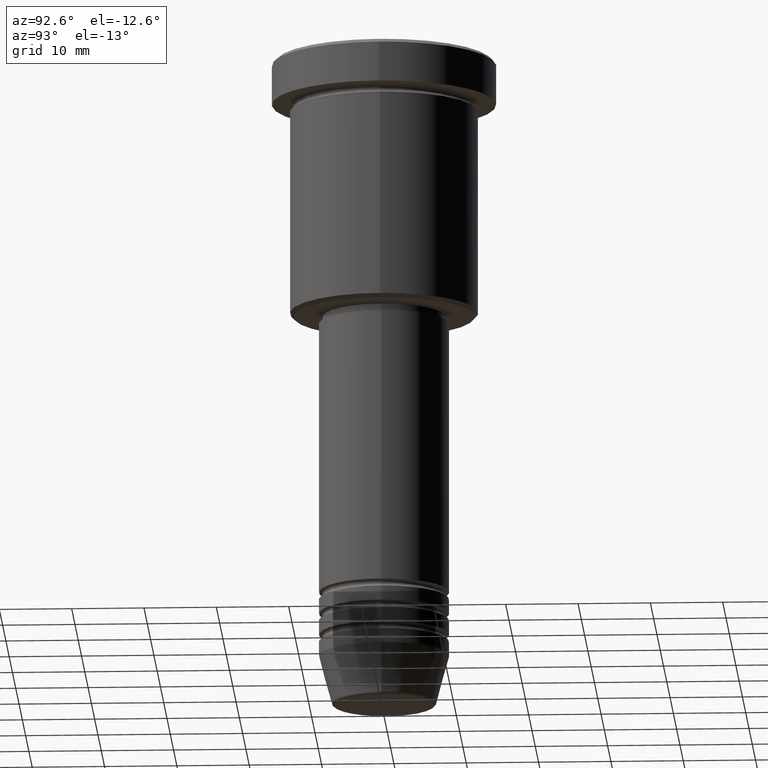
[diagram: clean part render]
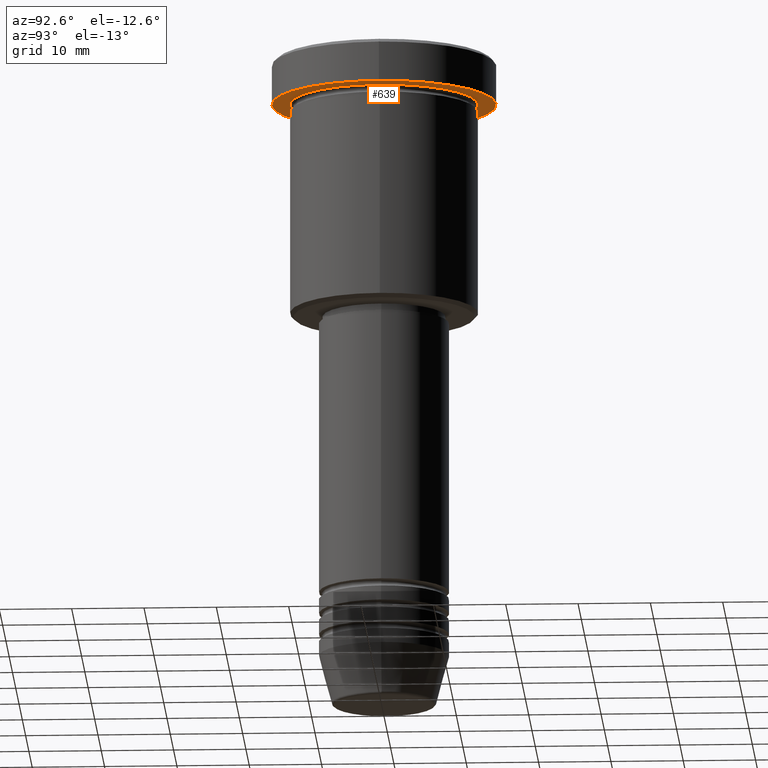
[diagram: same view with one face highlighted and labeled with its STEP entity id]
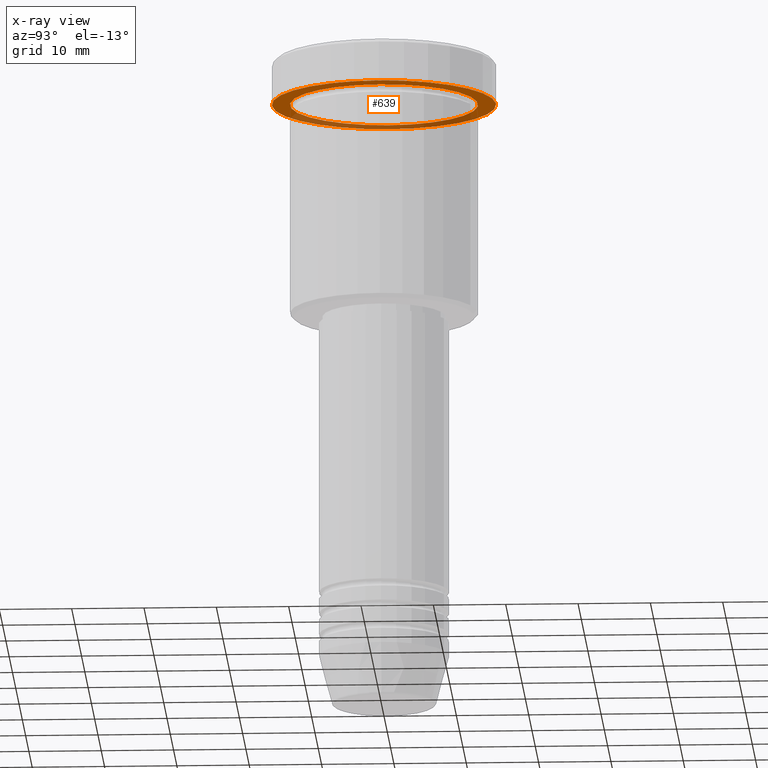
[diagram: x-ray of the same camera — body ghosted, the highlighted face saturated]
A machine part, auxiliary view. The second image highlights one B-rep face of the part: STEP entity #639.
The next image is the same camera in x-ray: the body ghosted, the highlighted face saturated — about 34% of this face is hidden behind the body in this view.
In plain terms, the highlighted planar face has unit normal (0, 0, -1).
Its self-contained STEP definition (entity closure, byte-faithful):
#54 = AXIS2_PLACEMENT_3D ( 'NONE', #840, #559, #1124 ) ;
#102 = ORIENTED_EDGE ( 'NONE', *, *, #350, .T. ) ;
#186 = DIRECTION ( 'NONE',  ( 1.000000000000000000, 0.000000000000000000, 0.000000000000000000 ) ) ;
#187 = VERTEX_POINT ( 'NONE', #885 ) ;
#217 = CARTESIAN_POINT ( 'NONE',  ( -15.50000000000000000, 1.898202538678397557E-15, -5.999999999999995559 ) ) ;
#231 = EDGE_LOOP ( 'NONE', ( #710, #102 ) ) ;
#237 = VERTEX_POINT ( 'NONE', #907 ) ;
#265 = EDGE_LOOP ( 'NONE', ( #857, #860 ) ) ;
#276 = CARTESIAN_POINT ( 'NONE',  ( 0.000000000000000000, 0.000000000000000000, -5.999999999999995559 ) ) ;
#298 = AXIS2_PLACEMENT_3D ( 'NONE', #638, #1021, #186 ) ;
#332 = PLANE ( 'NONE',  #832 ) ;
#350 = EDGE_CURVE ( 'NONE', #187, #237, #1054, .T. ) ;
#355 = DIRECTION ( 'NONE',  ( -1.000000000000000000, 0.000000000000000000, -0.000000000000000000 ) ) ;
#379 = AXIS2_PLACEMENT_3D ( 'NONE', #276, #631, #824 ) ;
#388 = EDGE_CURVE ( 'NONE', #237, #187, #564, .T. ) ;
#395 = CIRCLE ( 'NONE', #717, 15.50000000000000000 ) ;
#396 = EDGE_CURVE ( 'NONE', #650, #450, #526, .T. ) ;
#448 = CARTESIAN_POINT ( 'NONE',  ( 0.000000000000000000, 15.50000000000000000, -5.999999999999995559 ) ) ;
#450 = VERTEX_POINT ( 'NONE', #217 ) ;
#519 = DIRECTION ( 'NONE',  ( 0.000000000000000000, 0.000000000000000000, -1.000000000000000000 ) ) ;
#526 = CIRCLE ( 'NONE', #298, 15.50000000000000000 ) ;
#559 = DIRECTION ( 'NONE',  ( -0.000000000000000000, -0.000000000000000000, 1.000000000000000000 ) ) ;
#564 = CIRCLE ( 'NONE', #379, 13.00000000000000000 ) ;
#625 = FACE_OUTER_BOUND ( 'NONE', #265, .T. ) ;
#631 = DIRECTION ( 'NONE',  ( -0.000000000000000000, -0.000000000000000000, 1.000000000000000000 ) ) ;
#638 = CARTESIAN_POINT ( 'NONE',  ( 0.000000000000000000, 0.000000000000000000, -5.999999999999995559 ) ) ;
#639 = ADVANCED_FACE ( 'NONE', ( #998, #625 ), #332, .T. ) ;
#650 = VERTEX_POINT ( 'NONE', #1097 ) ;
#689 = DIRECTION ( 'NONE',  ( -0.000000000000000000, -0.000000000000000000, 1.000000000000000000 ) ) ;
#710 = ORIENTED_EDGE ( 'NONE', *, *, #388, .T. ) ;
#717 = AXIS2_PLACEMENT_3D ( 'NONE', #806, #689, #976 ) ;
#806 = CARTESIAN_POINT ( 'NONE',  ( 0.000000000000000000, 0.000000000000000000, -5.999999999999995559 ) ) ;
#824 = DIRECTION ( 'NONE',  ( -1.000000000000000000, 0.000000000000000000, 0.000000000000000000 ) ) ;
#832 = AXIS2_PLACEMENT_3D ( 'NONE', #448, #519, #355 ) ;
#840 = CARTESIAN_POINT ( 'NONE',  ( 0.000000000000000000, 0.000000000000000000, -5.999999999999995559 ) ) ;
#857 = ORIENTED_EDGE ( 'NONE', *, *, #396, .F. ) ;
#860 = ORIENTED_EDGE ( 'NONE', *, *, #883, .F. ) ;
#883 = EDGE_CURVE ( 'NONE', #450, #650, #395, .T. ) ;
#885 = CARTESIAN_POINT ( 'NONE',  ( 13.00000000000000000, 1.592040838891559095E-15, -5.999999999999994671 ) ) ;
#907 = CARTESIAN_POINT ( 'NONE',  ( -13.00000000000000000, 0.000000000000000000, -5.999999999999994671 ) ) ;
#976 = DIRECTION ( 'NONE',  ( 1.000000000000000000, 0.000000000000000000, 0.000000000000000000 ) ) ;
#998 = FACE_BOUND ( 'NONE', #231, .T. ) ;
#1021 = DIRECTION ( 'NONE',  ( -0.000000000000000000, -0.000000000000000000, 1.000000000000000000 ) ) ;
#1054 = CIRCLE ( 'NONE', #54, 13.00000000000000000 ) ;
#1097 = CARTESIAN_POINT ( 'NONE',  ( 15.50000000000000000, 0.000000000000000000, -5.999999999999995559 ) ) ;
#1124 = DIRECTION ( 'NONE',  ( -1.000000000000000000, 0.000000000000000000, 0.000000000000000000 ) ) ;